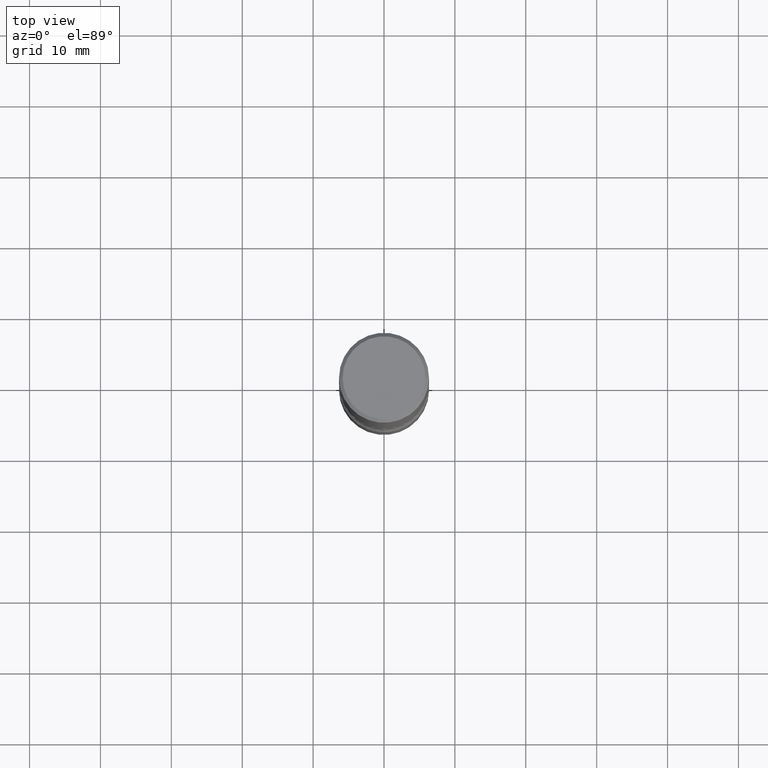
[diagram: clean part render]
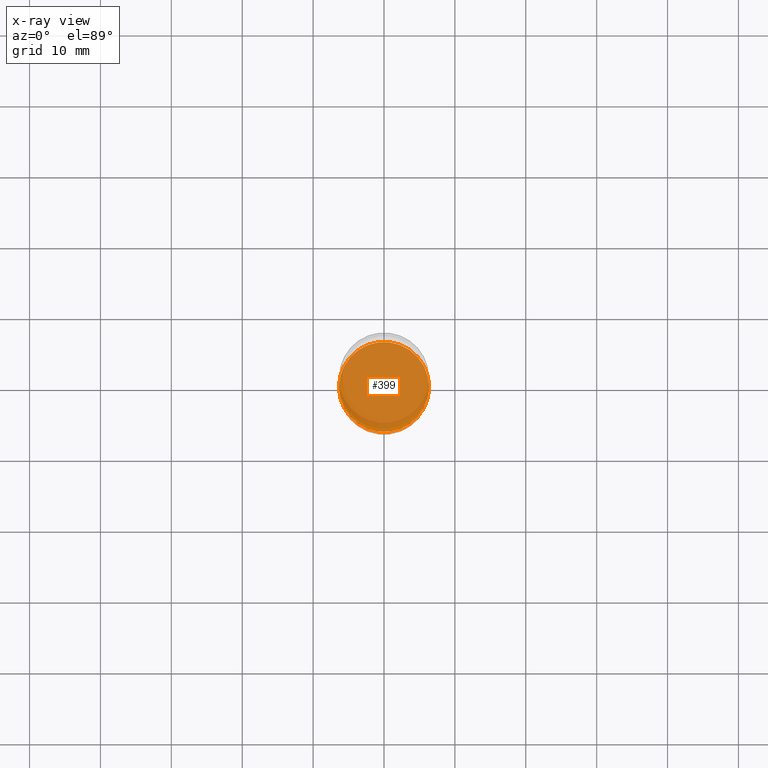
[diagram: x-ray — body ghosted, one internal face saturated and labeled with its STEP entity id]
A machine part, top view, then the same camera in x-ray: the body is ghosted and one INTERNAL B-rep face — a face not visible from any outside direction — is saturated and labeled: STEP entity #399.
In plain terms, the highlighted planar face has unit normal (0, -0, -1).
Its self-contained STEP definition (entity closure, byte-faithful):
#10 = PLANE ( 'NONE',  #423 ) ;
#29 = CARTESIAN_POINT ( 'NONE',  ( -0.2500000000000002776, -1.023433896622016898E-14, -3.000000000000000444 ) ) ;
#83 = VERTEX_POINT ( 'NONE', #279 ) ;
#93 = EDGE_CURVE ( 'NONE', #83, #210, #463, .T. ) ;
#163 = ORIENTED_EDGE ( 'NONE', *, *, #93, .T. ) ;
#171 = EDGE_LOOP ( 'NONE', ( #163, #265 ) ) ;
#182 = CARTESIAN_POINT ( 'NONE',  ( 7.336406418555409790E-29, -1.047444401652943635E-14, -3.000000000000000444 ) ) ;
#197 = AXIS2_PLACEMENT_3D ( 'NONE', #274, #445, #319 ) ;
#210 = VERTEX_POINT ( 'NONE', #29 ) ;
#249 = AXIS2_PLACEMENT_3D ( 'NONE', #394, #389, #266 ) ;
#265 = ORIENTED_EDGE ( 'NONE', *, *, #392, .T. ) ;
#266 = DIRECTION ( 'NONE',  ( 1.000000000000000000, -6.982962677686270655E-15, 0.000000000000000000 ) ) ;
#274 = CARTESIAN_POINT ( 'NONE',  ( 7.336406418555409790E-29, -1.047444401652943635E-14, -3.000000000000000444 ) ) ;
#279 = CARTESIAN_POINT ( 'NONE',  ( 0.2500000000000002776, -1.222018468595100619E-14, -3.000000000000000444 ) ) ;
#309 = DIRECTION ( 'NONE',  ( -1.000000000000000000, 6.982962677686265922E-15, -4.876176775795935793E-29 ) ) ;
#319 = DIRECTION ( 'NONE',  ( 1.000000000000000000, -6.982962677686270655E-15, 0.000000000000000000 ) ) ;
#389 = DIRECTION ( 'NONE',  ( -2.445468806185136597E-29, 3.491481338843145583E-15, 1.000000000000000000 ) ) ;
#392 = EDGE_CURVE ( 'NONE', #210, #83, #410, .T. ) ;
#393 = FACE_OUTER_BOUND ( 'NONE', #171, .T. ) ;
#394 = CARTESIAN_POINT ( 'NONE',  ( 7.336406418555409790E-29, -1.047444401652943635E-14, -3.000000000000000444 ) ) ;
#399 = ADVANCED_FACE ( 'NONE', ( #393 ), #10, .F. ) ;
#410 = CIRCLE ( 'NONE', #249, 0.2500000000000002776 ) ;
#423 = AXIS2_PLACEMENT_3D ( 'NONE', #182, #527, #309 ) ;
#445 = DIRECTION ( 'NONE',  ( -2.445468806185136597E-29, 3.491481338843145583E-15, 1.000000000000000000 ) ) ;
#463 = CIRCLE ( 'NONE', #197, 0.2500000000000002776 ) ;
#527 = DIRECTION ( 'NONE',  ( 2.438088387897960049E-29, -3.491481338843145188E-15, -1.000000000000000000 ) ) ;